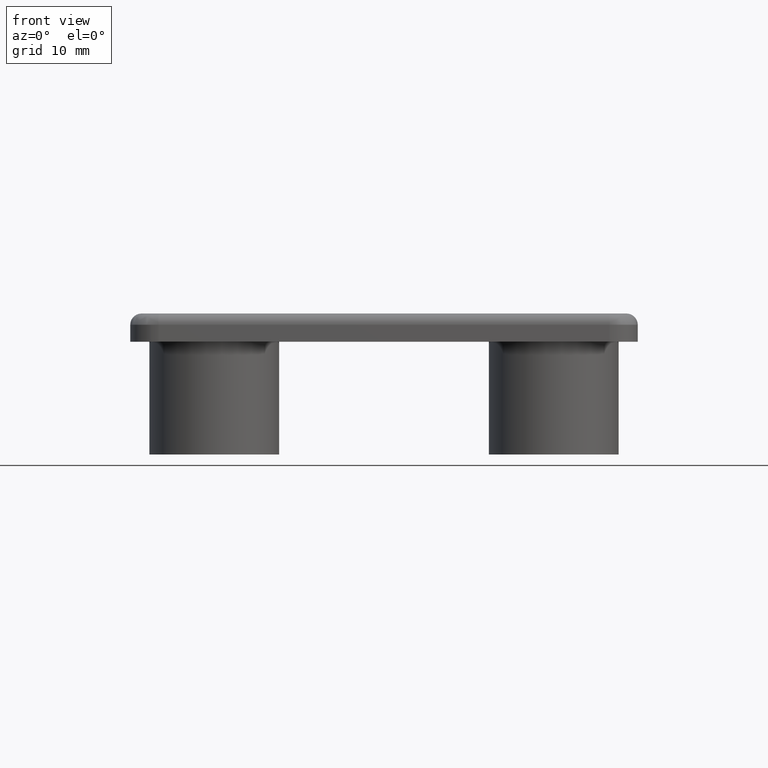
[diagram: clean part render]
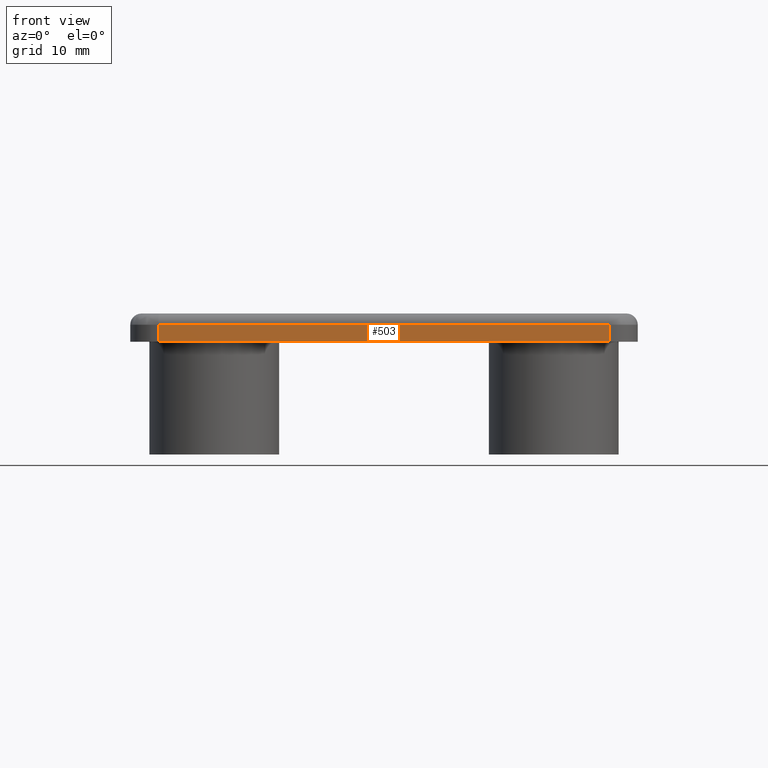
[diagram: same view with one face highlighted and labeled with its STEP entity id]
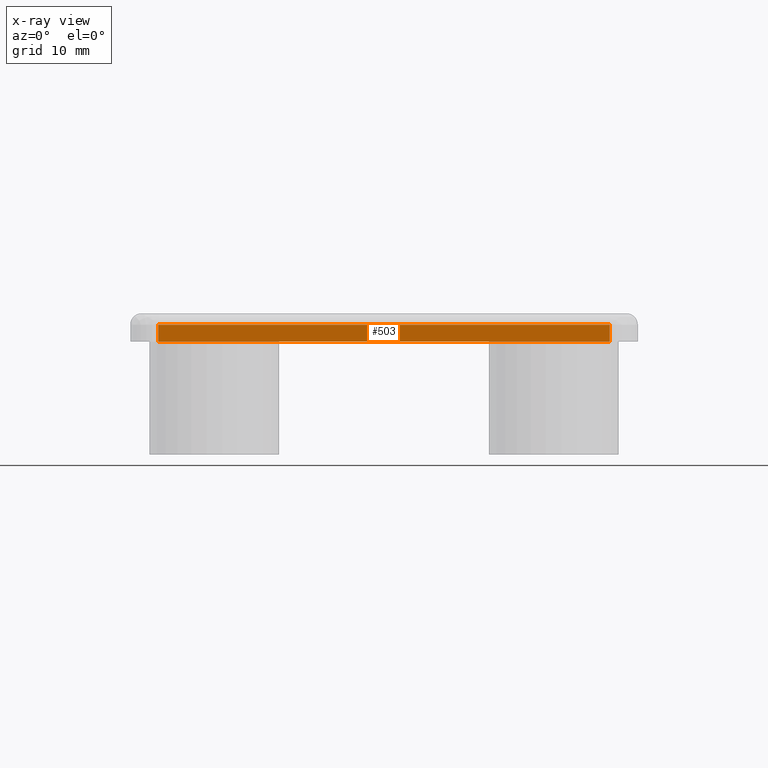
[diagram: x-ray of the same camera — body ghosted, the highlighted face saturated]
A machine part, front view. The second image highlights one B-rep face of the part: STEP entity #503.
The next image is the same camera in x-ray: the body ghosted, the highlighted face saturated — about 0% of this face is hidden behind the body in this view.
In plain terms, the highlighted planar face has unit normal (0, -1, 0).
Its self-contained STEP definition (entity closure, byte-faithful):
#7=CARTESIAN_POINT('',(-19.999976890545359,0.000000499999874,0.0));
#8=VERTEX_POINT('',#7);
#9=CARTESIAN_POINT('',(19.999976703044741,0.000000499999827,0.0));
#10=VERTEX_POINT('',#9);
#11=CARTESIAN_POINT('',(-19.999976890545359,0.000000499999874,0.0));
#12=DIRECTION('',(1.0,0.0,0.0));
#13=VECTOR('',#12,39.999953593590099);
#14=LINE('',#11,#13);
#15=EDGE_CURVE('',#8,#10,#14,.T.);
#461=CARTESIAN_POINT('',(-19.999976890545359,0.000000499999874,1.499999999989996));
#462=VERTEX_POINT('',#461);
#463=CARTESIAN_POINT('',(-19.999976890545359,0.000000499999874,0.0));
#464=DIRECTION('',(0.0,0.0,1.0));
#465=VECTOR('',#464,1.499999999989996);
#466=LINE('',#463,#465);
#467=EDGE_CURVE('',#8,#462,#466,.T.);
#480=CARTESIAN_POINT('',(-19.999976890545359,0.000000499999874,0.0));
#481=DIRECTION('',(0.0,-1.0,0.0));
#482=DIRECTION('',(1.0,0.0,0.0));
#483=AXIS2_PLACEMENT_3D('',#480,#481,#482);
#484=PLANE('',#483);
#485=CARTESIAN_POINT('',(19.999976703044741,0.000000499999827,1.499999999989996));
#486=VERTEX_POINT('',#485);
#487=CARTESIAN_POINT('',(19.999976703044741,0.000000499999827,0.0));
#488=DIRECTION('',(0.0,0.0,1.0));
#489=VECTOR('',#488,1.499999999989996);
#490=LINE('',#487,#489);
#491=EDGE_CURVE('',#10,#486,#490,.T.);
#492=ORIENTED_EDGE('',*,*,#491,.T.);
#493=CARTESIAN_POINT('',(-19.999976890545359,0.000000499999874,1.499999999989996));
#494=DIRECTION('',(1.0,0.0,0.0));
#495=VECTOR('',#494,39.999953593590099);
#496=LINE('',#493,#495);
#497=EDGE_CURVE('',#462,#486,#496,.T.);
#498=ORIENTED_EDGE('',*,*,#497,.F.);
#499=ORIENTED_EDGE('',*,*,#467,.F.);
#500=ORIENTED_EDGE('',*,*,#15,.T.);
#501=EDGE_LOOP('',(#492,#498,#499,#500));
#502=FACE_OUTER_BOUND('',#501,.T.);
#503=ADVANCED_FACE('',(#502),#484,.T.);